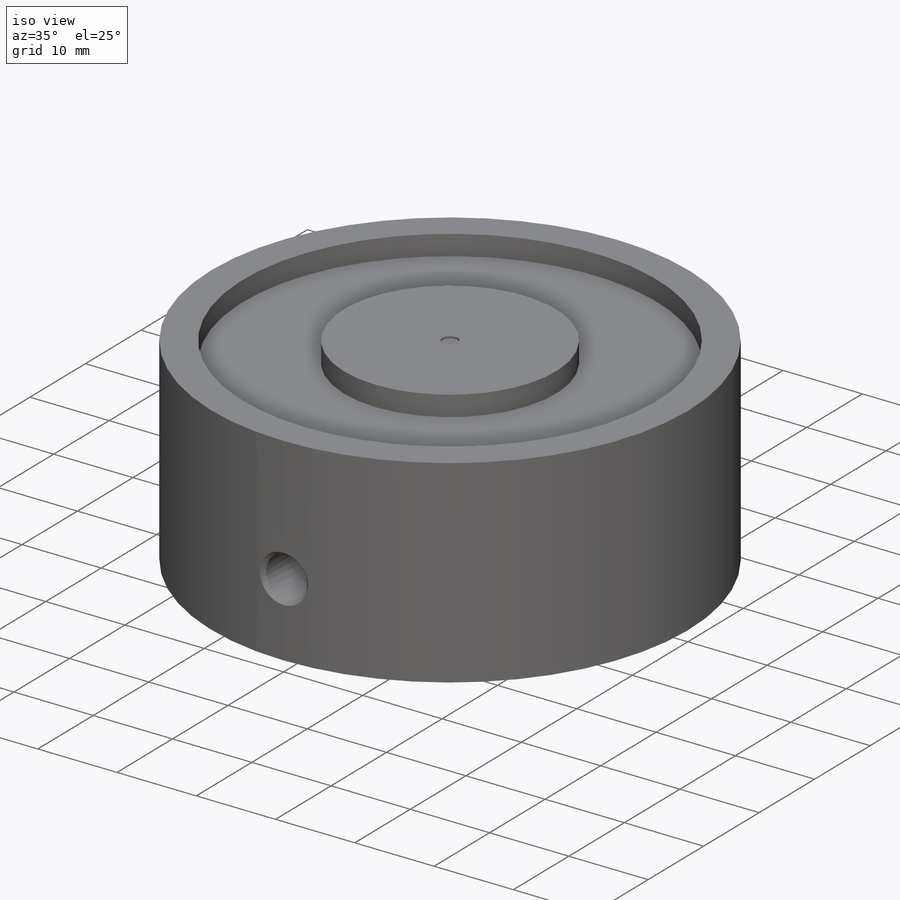
[diagram: iso view]
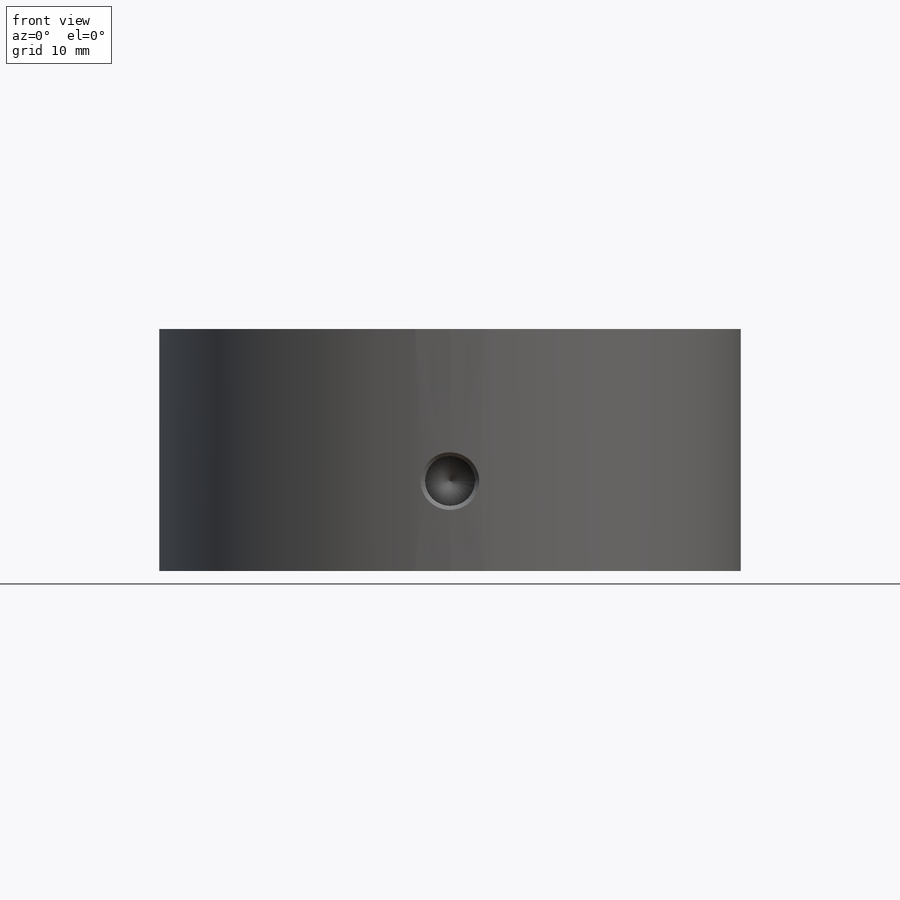
[diagram: front view]
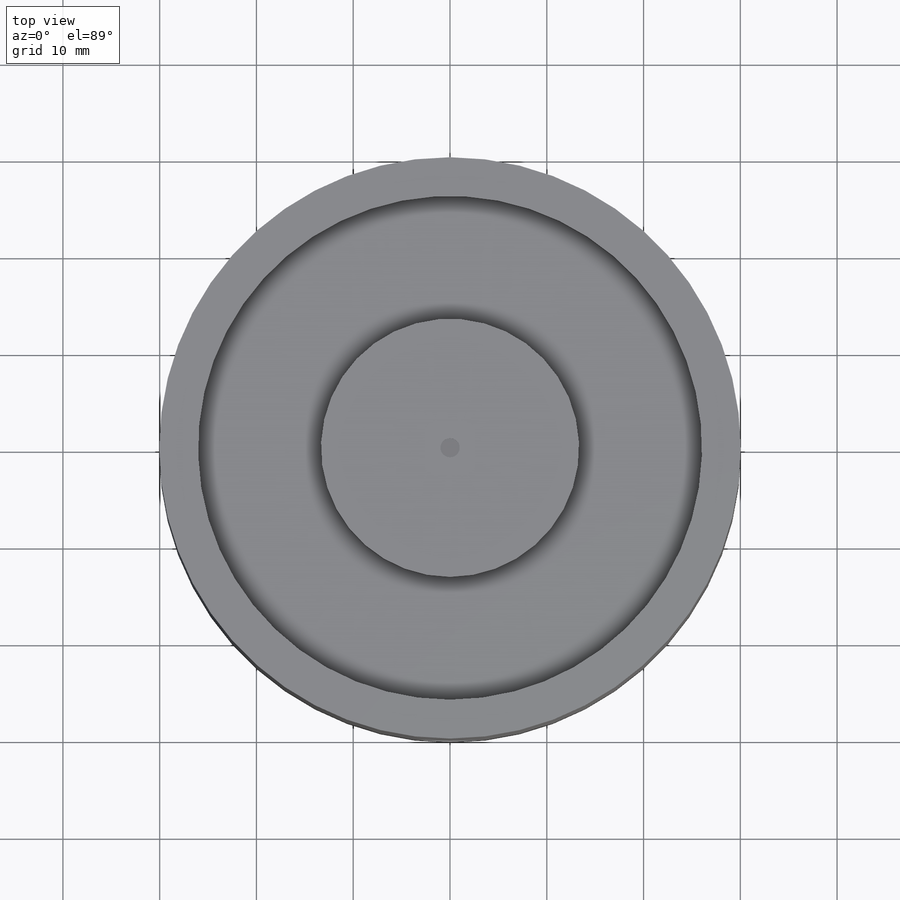
[diagram: top view]
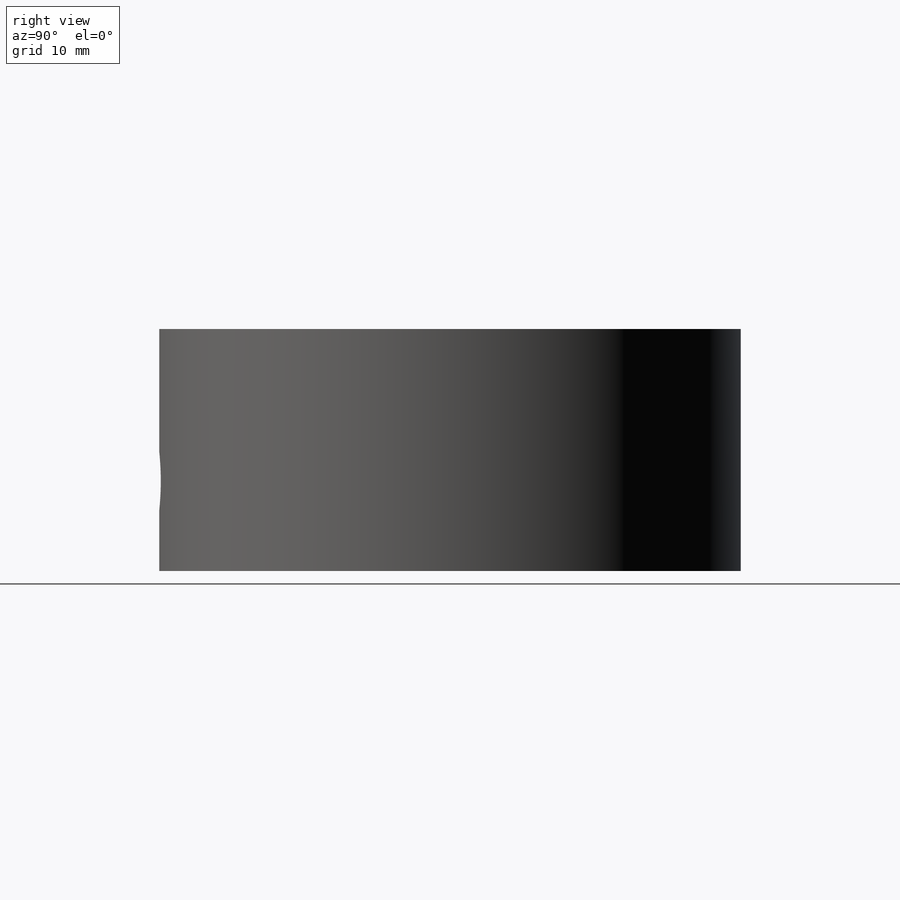
[diagram: right view]
SOLIDWORKS PART (.sldprt)
format: sldprt  version: not decoded by parser v0  size: 274,432 bytes
history: native  units: mm
features: sketch x10, hole x4, revolve x2, chamfer x2, material x1, plane x1 (+12 scaffold rows collapsed)
feature tree (32):
  scaffold x12  (default folders/planes/origin — collapsed)
  material  "Material <not specified>"
  sketch  "Sketch1"
  revolve  "Revolve1"  Angle=360deg
  hole  "M48 Clearance Hole1"  Diameter=52.07mm Depth=2.54mm
  sketch  "Sketch3"
  sketch  "Sketch2"  dims[hole-wizard template sketch: 46 standard entries collapsed; hole parameters kept: c15.Hole Dia.=52.07mm c15.Hole Depth=2.54mm c15.D3=~14.816244mm c15.Drill Angle=180.0deg]
  plane  "Plane1"
  sketch  "Sketch4"
  revolve  "Revolve2"  Angle=360deg
  hole  "Hole1"  Diameter=5.159502mm Depth=5.08mm
  sketch  "3DSketch1"
  sketch  "Sketch5"  dims[c1.D1=~97.659253deg c1.D2=~82.982399deg c1.Diameter=~5.159502mm c2.D2=100.0mm c2.D3=~82.982399deg c2.D4=90.0deg c3.D3=~97.716715deg c3.Depth=5.08mm c3.Drill Angle=118.0deg]
  hole  "M6 Clearance Hole1"  Diameter=6.8072mm Depth=13.97mm
  sketch  "Sketch7"
  sketch  "Sketch6"  dims[hole-wizard template sketch: 46 standard entries collapsed; hole parameters kept: c15.Hole Dia.=6.8072mm c15.Hole Depth=13.97mm c15.D3=~14.816244mm c15.Drill Angle=118.0deg]
  hole  "M1.6 Clearance Hole1"  Diameter=1.984375mm Depth=0.254mm
  sketch  "Sketch9"
  sketch  "Sketch8"  dims[hole-wizard template sketch: 46 standard entries collapsed; hole parameters kept: c15.Hole Dia.=~1.984375mm c15.Hole Depth=0.254mm c15.D3=~14.816244mm c15.Drill Angle=180.0deg]
  chamfer  "Chamfer1"  Distance=0.6604mm Angle=45deg
  chamfer  "Chamfer2"  Distance=0.450728mm Angle=50.552952deg
decode coverage: 12 of 18 modeling features carry decoded parameters
note: ~ marks probable driven/reference dimensions
summary: Diameter pulled from absorbed wizard sketch
note: suppression state not decoded; provenance and decode notes live in map.json
